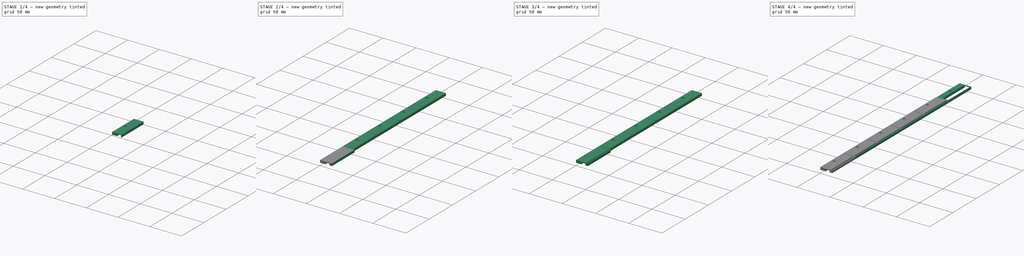
[diagram: build sequence overview — one tinted view per stage of 4, left to right]
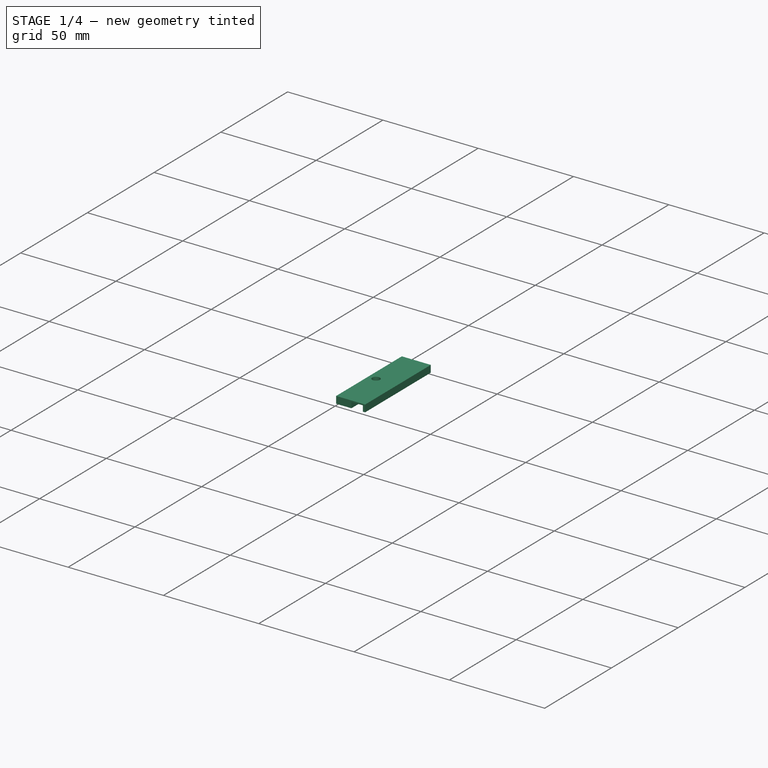
[diagram: stage 1 of 4 — iso view after this stage's code; geometry added in this stage tinted green]
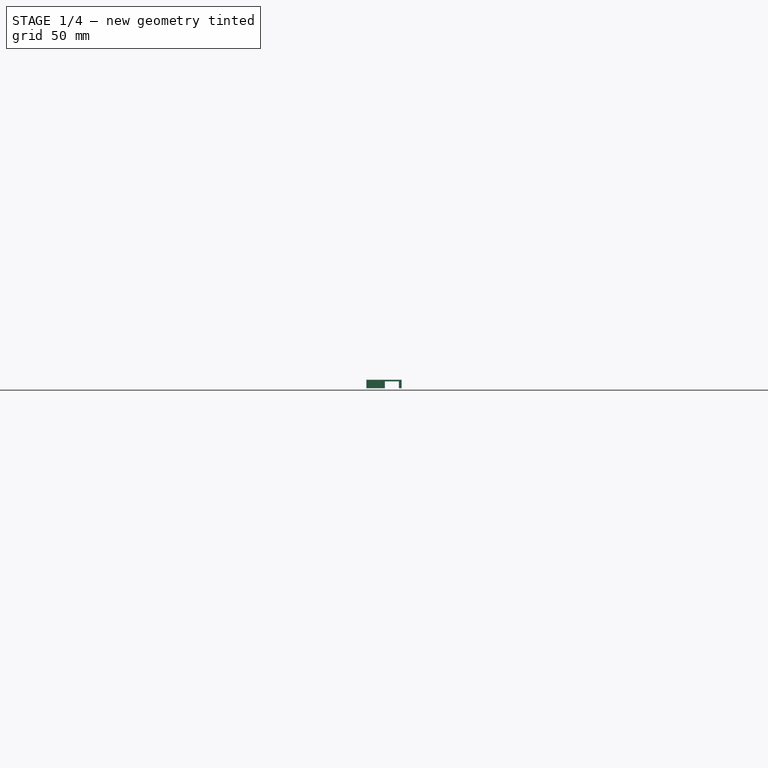
[diagram: stage 1 of 4 — front view after this stage's code; geometry added in this stage tinted green]
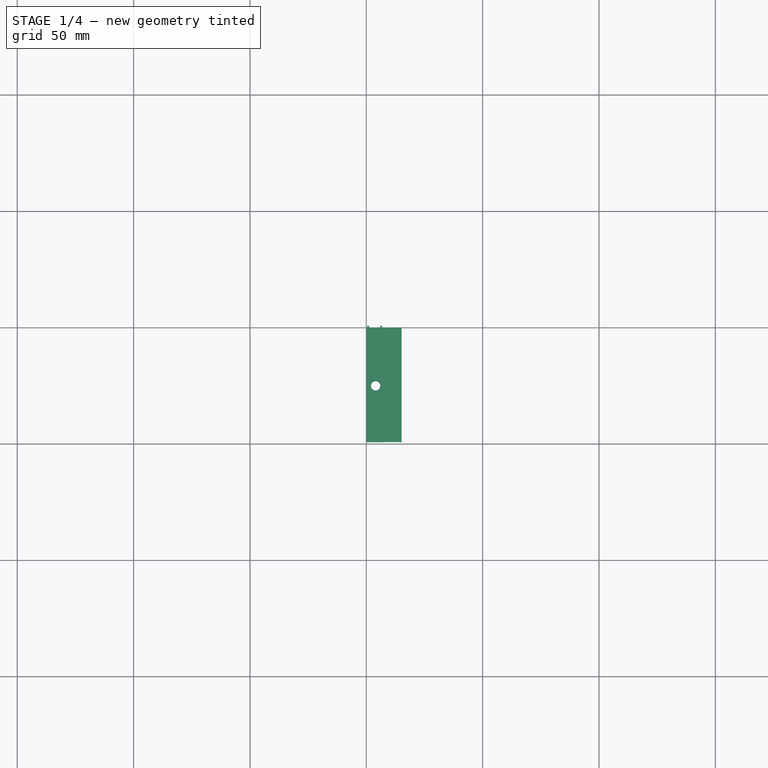
[diagram: stage 1 of 4 — top view after this stage's code; geometry added in this stage tinted green]
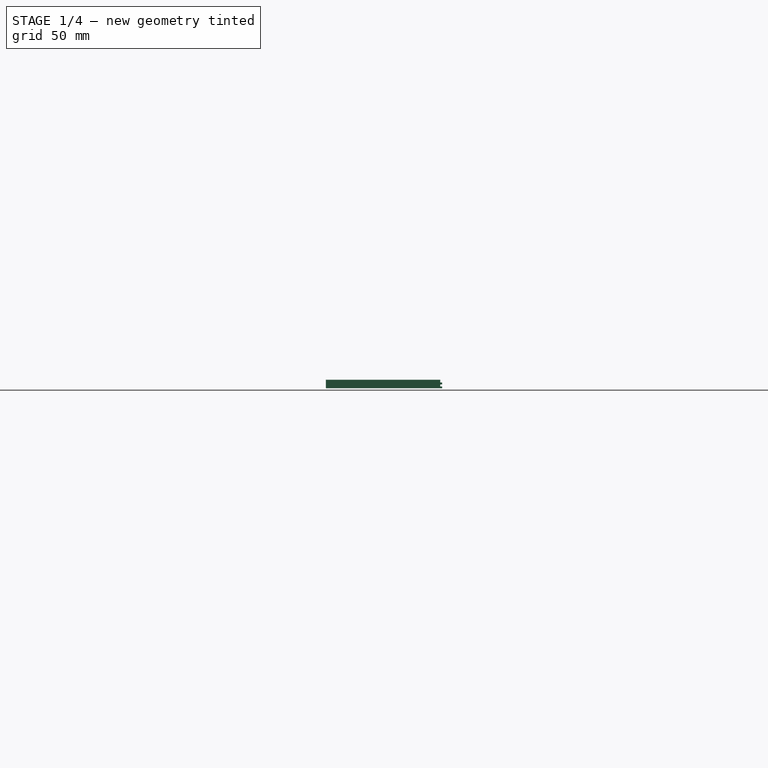
[diagram: stage 1 of 4 — right view after this stage's code; geometry added in this stage tinted green]
FCSTD DOCUMENT  (FreeCAD 0.22R36117 (Git))
Label: cob strip mount
License: All rights reserved
LicenseURL: http://en.wikipedia.org/wiki/All_rights_reserved
objects: Sketcher::SketchObject×7, PartDesign::Pad×4, PartDesign::Pocket×3, Spreadsheet::Sheet×2, PartDesign::Chamfer×2, PartDesign::Body×2, Part::FeaturePython×2
note: 29 computed .brp shape members not serialized (recipe doc carries the construction recipe); baked Part::Feature solids carry a one-line shape summary decoded from their .brp

FEATURE [Sketcher::SketchObject] Sketch006  label="wire strip"
  FullyConstrained = true
  MapMode = 5
  Placement = pos=(0,0,0) rot=(1,0,0;1.5708rad)
  Support = -> [XZ_Plane002]
  expr: Constraints[16] = <<q001>>.screw_diameter * 2
  expr: Constraints[17] = <<q>>.wire_width
  expr: Constraints[18] = <<q001>>.wire_thickness
  expr: Constraints[19] = <<q001>>.retainer_height
  expr: Constraints[22] = <<q>>.wall
  sketch-geometry (8):
    g0: LineSegment StartX=0 StartY=3.7 StartZ=0 EndX=15.2 EndY=3.7 EndZ=0
    g1: LineSegment StartX=0 StartY=3.7 StartZ=0 EndX=0 EndY=0 EndZ=0
    g2: LineSegment StartX=0 StartY=0 StartZ=0 EndX=8 EndY=0 EndZ=0
    g3: LineSegment StartX=8 StartY=0 StartZ=0 EndX=8 EndY=3 EndZ=0
    g4: LineSegment StartX=8 StartY=3 StartZ=0 EndX=14 EndY=3 EndZ=0
    g5: LineSegment StartX=14 StartY=3 StartZ=0 EndX=14 EndY=0 EndZ=0
    g6: LineSegment StartX=14 StartY=0 StartZ=0 EndX=15.2 EndY=0 EndZ=0
    g7: LineSegment StartX=15.2 StartY=0 StartZ=0 EndX=15.2 EndY=3.7 EndZ=0
  constraints (23):
    c: Horizontal(g0)
    c: Coincident(g0,g1)
    c: Vertical(g1)
    c: Coincident(g1,g2)
    c: Horizontal(g2)
    c: Coincident(g2,g3)
    c: Vertical(g3)
    c: Coincident(g3,g4)
    c: Horizontal(g4)
    c: Coincident(g4,g5)
    c: Vertical(g5)
    c: Coincident(g5,g6)
    c: Horizontal(g6)
    c: Coincident(g6,g7)
    c: Coincident(g7,g0)
    c: Vertical(g7)
    c: DistanceX(g2,g2) = 8
    c: DistanceX(g4,g4) = 6
    c: DistanceY(g5,g5) = 3
    c: DistanceY(g1,g1) = 3.7
    c: Horizontal(g5,g2)
    c: Coincident(g1,g-1)
    c: DistanceX(g5,g6) = 1.2
FEATURE [PartDesign::Pad] Pad003
  Direction = (0,-1,2e-16)
  Length = 49.2
  Length2 = 10
  Placement = pos=(0,0,0) rot=(1,0,0;1.5708rad)
  Profile = -> Sketch006
  ReferenceAxis = -> Sketch006 [N_Axis]
  Suppressed = false
  Type = 0
  expr: Length = <<q001>>.segment_length - <<q001>>.breakoff_size
FEATURE [Sketcher::SketchObject] Sketch007
  FullyConstrained = true
  MapMode = 5
  Placement = pos=(0,0,0) rot=(0,0.707107,0.707107;3.14159rad)
  Support = -> [XZ_Plane002]
  expr: Constraints[16] = <<q001>>.breakoff_size
  expr: Constraints[18] = <<q001>>.screw_diameter * 2 - <<q001>>.wall
  expr: Constraints[21] = <<q001>>.retainer_height - <<q001>>.wall
  expr: Constraints[22] = <<q001>>.breakoff_size
  expr: Constraints[23] = <<q001>>.wall
  sketch-geometry (16):
    g0: LineSegment StartX=-1.2 StartY=2.5 StartZ=0 EndX=-1.2 EndY=1.7 EndZ=0
    g1: LineSegment StartX=-1.2 StartY=1.7 StartZ=0 EndX=-0.4 EndY=1.7 EndZ=0
    g2: LineSegment StartX=-0.4 StartY=1.7 StartZ=0 EndX=-0.4 EndY=2.5 EndZ=0
    g3: LineSegment StartX=-0.4 StartY=2.5 StartZ=0 EndX=-1.2 EndY=2.5 EndZ=0
    g4: LineSegment StartX=-6.8 StartY=2.5 StartZ=0 EndX=-6.8 EndY=1.7 EndZ=0
    g5: LineSegment StartX=-6.8 StartY=1.7 StartZ=0 EndX=-6 EndY=1.7 EndZ=0
    g6: LineSegment StartX=-6 StartY=1.7 StartZ=0 EndX=-6 EndY=2.5 EndZ=0
    g7: LineSegment StartX=-6 StartY=2.5 StartZ=0 EndX=-6.8 EndY=2.5 EndZ=0
    g8: LineSegment StartX=-0.4 StartY=0 StartZ=0 EndX=-0.4 EndY=0.8 EndZ=0
    g9: LineSegment StartX=-0.4 StartY=0.8 StartZ=0 EndX=-1.2 EndY=0.8 EndZ=0
    g10: LineSegment StartX=-1.2 StartY=0.8 StartZ=0 EndX=-1.2 EndY=0 EndZ=0
    g11: LineSegment StartX=-1.2 StartY=0 StartZ=0 EndX=-0.4 EndY=0 EndZ=0
    g12: LineSegment StartX=-6 StartY=0 StartZ=0 EndX=-6 EndY=0.8 EndZ=0
    g13: LineSegment StartX=-6 StartY=0.8 StartZ=0 EndX=-6.8 EndY=0.8 EndZ=0
    g14: LineSegment StartX=-6.8 StartY=0.8 StartZ=0 EndX=-6.8 EndY=0 EndZ=0
    g15: LineSegment StartX=-6.8 StartY=0 StartZ=0 EndX=-6 EndY=0 EndZ=0
  constraints (48):
    c: Coincident(g0,g1)
    c: Coincident(g1,g2)
    c: Coincident(g2,g3)
    c: Coincident(g3,g0)
    c: Vertical(g0)
    c: Vertical(g2)
    c: Horizontal(g1)
    c: Horizontal(g3)
    c: Coincident(g4,g5)
    c: Coincident(g5,g6)
    c: Coincident(g6,g7)
    c: Coincident(g7,g4)
    c: Vertical(g4)
    c: Vertical(g6)
    c: Horizontal(g5)
    c: Horizontal(g7)
    c: DistanceX(g5,g5) = 0.8
    c: Equal(g5,g1)
    c: DistanceX(g4,g-1) = 6.8
    c: Horizontal(g5,g1)
    c: Horizontal(g2,g6)
    c: DistanceY(g-1,g0) = 2.5
    c: DistanceY(g0,g0) = 0.8
    c: DistanceX(g0,g-1) = 1.2
    c: Coincident(g8,g9)
    c: Coincident(g9,g10)
    c: Coincident(g10,g11)
    c: Coincident(g11,g8)
    c: Vertical(g8)
    c: Vertical(g10)
    c: Horizontal(g9)
    c: Horizontal(g11)
    c: Coincident(g12,g13)
    c: Coincident(g13,g14)
    c: Coincident(g14,g15)
    c: Coincident(g15,g12)
    c: Vertical(g12)
    c: Vertical(g14)
    c: Horizontal(g13)
    c: Horizontal(g15)
    c: Equal(g13,g12)
    c: Equal(g10,g9)
    c: Equal(g9,g1)
    c: Equal(g9,g12)
    c: Vertical(g9,g0)
    c: Horizontal(g10,g12)
    c: PointOnObject(g8,g-1)
    c: Vertical(g13,g4)
FEATURE [PartDesign::Pad] Pad004
  BaseFeature = -> Pad003
  Direction = (0,1,-2e-16)
  Length = 0.8
  Length2 = 10
  Placement = pos=(0,0,0) rot=(1,0,0;1.5708rad)
  Profile = -> Sketch007
  ReferenceAxis = -> Sketch007 [N_Axis]
  Suppressed = false
  Type = 0
  expr: Length = <<q001>>.breakoff_size
FEATURE [Sketcher::SketchObject] Sketch009
  FullyConstrained = true
  MapMode = 5
  Support = -> [XY_Plane002]
  expr: Constraints[0] = <<q001>>.screw_diameter
  expr: Constraints[1] = <<q001>>.screw_diameter
  expr: Constraints[2] = <<q001>>.segment_length / 2
  sketch-geometry (1):
    g0: Circle CenterX=4 CenterY=-25 CenterZ=0 NormalX=0 NormalY=0 NormalZ=1 AngleXU=0 Radius=2
  constraints (3):
    c: Diameter(g0) = 4
    c: DistanceX(g-1,g0) = 4
    c: DistanceY(g0,g-1) = 25
FEATURE [PartDesign::Pocket] Pocket004
  BaseFeature = -> Pad004
  Direction = (0,0,-1)
  Length = 5
  Length2 = 5
  Placement = pos=(0,0,0) rot=(1,0,0;1.5708rad)
  Profile = -> Sketch009
  ReferenceAxis = -> Sketch009 [N_Axis]
  Refine = true
  Reversed = true
  Suppressed = false
  Type = 0
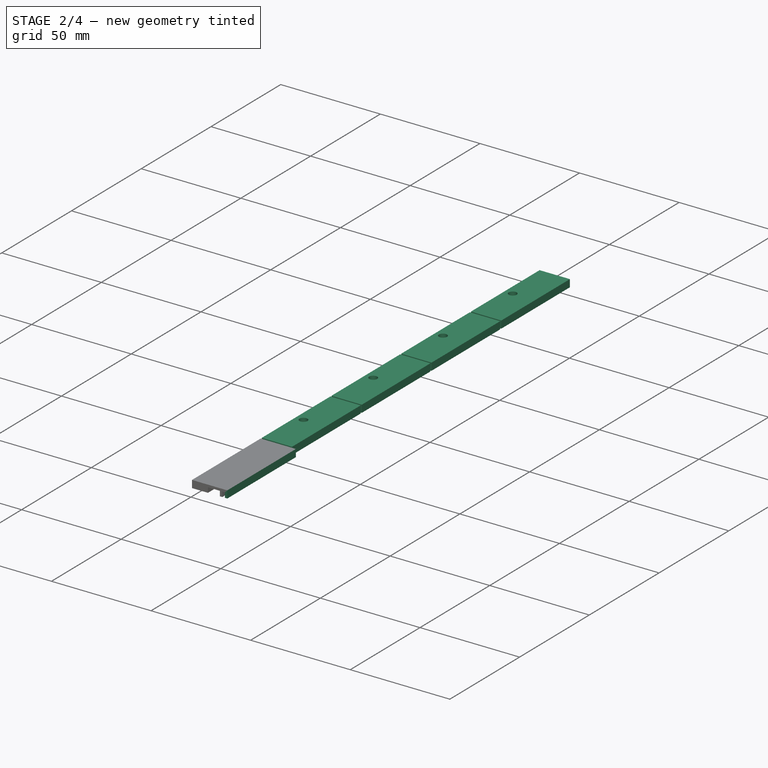
[diagram: stage 2 of 4 — iso view after this stage's code; geometry added in this stage tinted green]
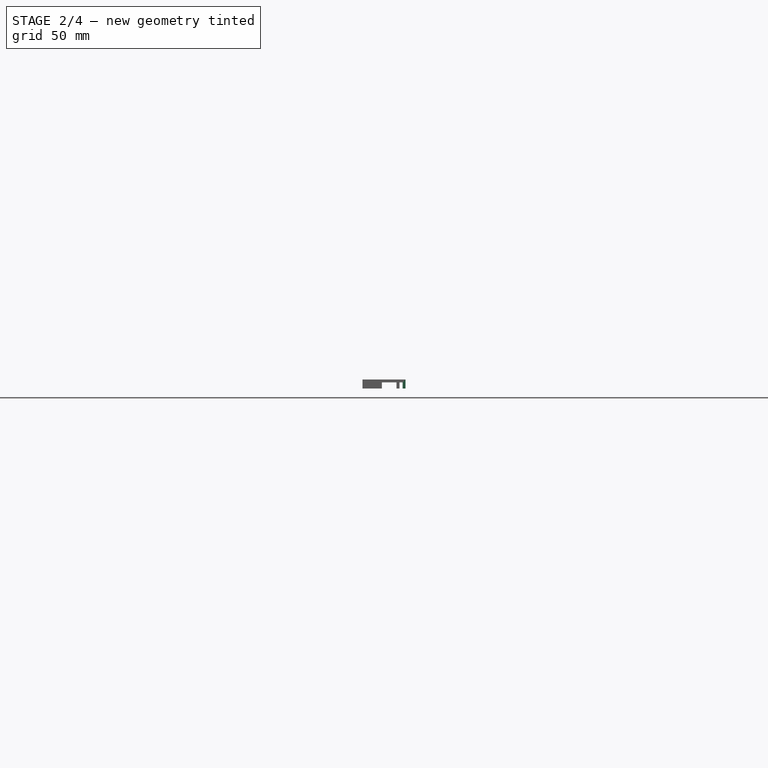
[diagram: stage 2 of 4 — front view after this stage's code; geometry added in this stage tinted green]
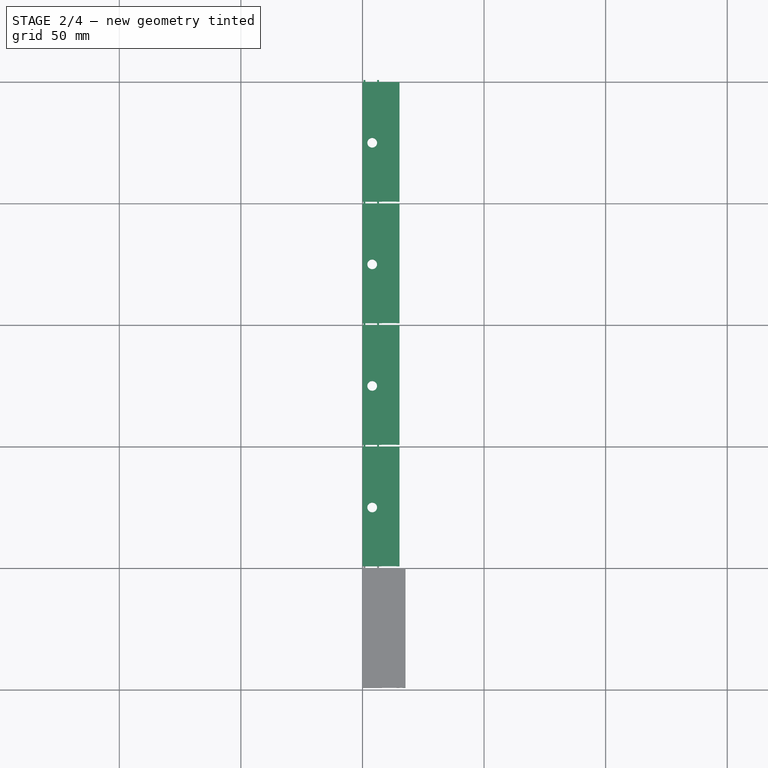
[diagram: stage 2 of 4 — top view after this stage's code; geometry added in this stage tinted green]
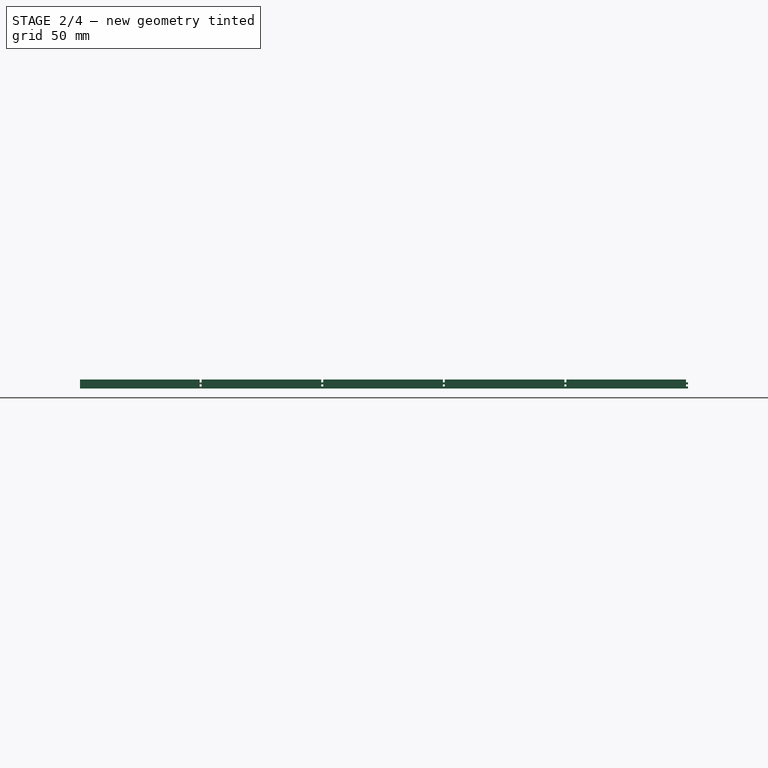
[diagram: stage 2 of 4 — right view after this stage's code; geometry added in this stage tinted green]
FEATURE [Spreadsheet::Sheet] Spreadsheet  label="q"
  cells = A2='screw diameter; B2(screw_diameter)=4; A4='strip width; B4(strip_width)=8.5; A5='strip thickness; B5(strip_thickness)=2.5; A7='wall; B7(wall)=1.2; A9='segment length; B9(segment_length)=50; A10='breakoff size; B10(breakoff_size)=0.8; A11='retainer height; B11(retainer_height)==strip_thickness + wall; A12='retainer width; B12(retainer_width)==screw_diameter * 2 + strip_width + wall; A14='wire width; B14(wire_width)=6; A15='wire thickness; B15(wire_thickness)=3
FEATURE [Sketcher::SketchObject] Sketch  label="retainer profile"
  FullyConstrained = true
  MapMode = 5
  Placement = pos=(0,0,0) rot=(1,0,0;1.5708rad)
  Support = -> [XZ_Plane]
  expr: Constraints[17] = <<q>>.screw_diameter * 2
  expr: Constraints[18] = <<q>>.strip_width
  expr: Constraints[19] = <<q>>.strip_thickness
  expr: Constraints[1] = <<q>>.retainer_width
  expr: Constraints[20] = <<q>>.retainer_height
  sketch-geometry (8):
    g0: LineSegment StartX=0 StartY=3.7 StartZ=0 EndX=17.7 EndY=3.7 EndZ=0
    g1: LineSegment StartX=0 StartY=3.7 StartZ=0 EndX=0 EndY=0 EndZ=0
    g2: LineSegment StartX=0 StartY=0 StartZ=0 EndX=8 EndY=0 EndZ=0
    g3: LineSegment StartX=8 StartY=0 StartZ=0 EndX=8 EndY=2.5 EndZ=0
    g4: LineSegment StartX=8 StartY=2.5 StartZ=0 EndX=16.5 EndY=2.5 EndZ=0
    g5: LineSegment StartX=16.5 StartY=2.5 StartZ=0 EndX=16.5 EndY=0 EndZ=0
    g6: LineSegment StartX=16.5 StartY=0 StartZ=0 EndX=17.7 EndY=0 EndZ=0
    g7: LineSegment StartX=17.7 StartY=0 StartZ=0 EndX=17.7 EndY=3.7 EndZ=0
  constraints (23):
    c: Horizontal(g0)
    c: DistanceX(g0,g0) = 17.7
    c: Coincident(g0,g1)
    c: Vertical(g1)
    c: Coincident(g1,g2)
    c: Horizontal(g2)
    c: Coincident(g2,g3)
    c: Vertical(g3)
    c: Coincident(g3,g4)
    c: Horizontal(g4)
    c: Coincident(g4,g5)
    c: Vertical(g5)
    c: Coincident(g5,g6)
    c: Horizontal(g6)
    c: Coincident(g6,g7)
    c: Coincident(g7,g0)
    c: Vertical(g7)
    c: DistanceX(g2,g2) = 8
    c: DistanceX(g4,g4) = 8.5
    c: DistanceY(g5,g5) = 2.5
    c: DistanceY(g1,g1) = 3.7
    c: Horizontal(g5,g2)
    c: Coincident(g1,g-1)
FEATURE [Sketcher::SketchObject] Sketch001
  FullyConstrained = true
  MapMode = 5
  Placement = pos=(0,0,0) rot=(0,0.707107,0.707107;3.14159rad)
  Support = -> [XZ_Plane]
  expr: Constraints[16] = <<q>>.breakoff_size
  expr: Constraints[18] = <<q>>.screw_diameter * 2 - <<q>>.wall
  expr: Constraints[21] = <<q>>.retainer_height - <<q>>.wall
  expr: Constraints[22] = <<q>>.breakoff_size
  expr: Constraints[23] = <<q>>.wall
  sketch-geometry (16):
    g0: LineSegment StartX=-1.2 StartY=2.5 StartZ=0 EndX=-1.2 EndY=1.7 EndZ=0
    g1: LineSegment StartX=-1.2 StartY=1.7 StartZ=0 EndX=-0.4 EndY=1.7 EndZ=0
    g2: LineSegment StartX=-0.4 StartY=1.7 StartZ=0 EndX=-0.4 EndY=2.5 EndZ=0
    g3: LineSegment StartX=-0.4 StartY=2.5 StartZ=0 EndX=-1.2 EndY=2.5 EndZ=0
    g4: LineSegment StartX=-6.8 StartY=2.5 StartZ=0 EndX=-6.8 EndY=1.7 EndZ=0
    g5: LineSegment StartX=-6.8 StartY=1.7 StartZ=0 EndX=-6 EndY=1.7 EndZ=0
    g6: LineSegment StartX=-6 StartY=1.7 StartZ=0 EndX=-6 EndY=2.5 EndZ=0
    g7: LineSegment StartX=-6 StartY=2.5 StartZ=0 EndX=-6.8 EndY=2.5 EndZ=0
    g8: LineSegment StartX=-0.4 StartY=0 StartZ=0 EndX=-0.4 EndY=0.8 EndZ=0
    g9: LineSegment StartX=-0.4 StartY=0.8 StartZ=0 EndX=-1.2 EndY=0.8 EndZ=0
    g10: LineSegment StartX=-1.2 StartY=0.8 StartZ=0 EndX=-1.2 EndY=0 EndZ=0
    g11: LineSegment StartX=-1.2 StartY=0 StartZ=0 EndX=-0.4 EndY=0 EndZ=0
    g12: LineSegment StartX=-6 StartY=0 StartZ=0 EndX=-6 EndY=0.8 EndZ=0
    g13: LineSegment StartX=-6 StartY=0.8 StartZ=0 EndX=-6.8 EndY=0.8 EndZ=0
    g14: LineSegment StartX=-6.8 StartY=0.8 StartZ=0 EndX=-6.8 EndY=0 EndZ=0
    g15: LineSegment StartX=-6.8 StartY=0 StartZ=0 EndX=-6 EndY=0 EndZ=0
  constraints (48):
    c: Coincident(g0,g1)
    c: Coincident(g1,g2)
    c: Coincident(g2,g3)
    c: Coincident(g3,g0)
    c: Vertical(g0)
    c: Vertical(g2)
    c: Horizontal(g1)
    c: Horizontal(g3)
    c: Coincident(g4,g5)
    c: Coincident(g5,g6)
    c: Coincident(g6,g7)
    c: Coincident(g7,g4)
    c: Vertical(g4)
    c: Vertical(g6)
    c: Horizontal(g5)
    c: Horizontal(g7)
    c: DistanceX(g5,g5) = 0.8
    c: Equal(g5,g1)
    c: DistanceX(g4,g-1) = 6.8
    c: Horizontal(g5,g1)
    c: Horizontal(g2,g6)
    c: DistanceY(g-1,g0) = 2.5
    c: DistanceY(g0,g0) = 0.8
    c: DistanceX(g0,g-1) = 1.2
    c: Coincident(g8,g9)
    c: Coincident(g9,g10)
    c: Coincident(g10,g11)
    c: Coincident(g11,g8)
    c: Vertical(g8)
    c: Vertical(g10)
    c: Horizontal(g9)
    c: Horizontal(g11)
    c: Coincident(g12,g13)
    c: Coincident(g13,g14)
    c: Coincident(g14,g15)
    c: Coincident(g15,g12)
    c: Vertical(g12)
    c: Vertical(g14)
    c: Horizontal(g13)
    c: Horizontal(g15)
    c: Equal(g13,g12)
    c: Equal(g10,g9)
    c: Equal(g9,g1)
    c: Equal(g9,g12)
    c: Vertical(g9,g0)
    c: Horizontal(g10,g12)
    c: PointOnObject(g8,g-1)
    c: Vertical(g13,g4)
FEATURE [Sketcher::SketchObject] Sketch002
  FullyConstrained = true
  MapMode = 5
  Support = -> [XY_Plane]
  expr: Constraints[10] = <<q>>.wall
  expr: Constraints[11] = <<q>>.screw_diameter * 2
  expr: Constraints[8] = <<q>>.strip_width
  expr: Constraints[9] = <<q>>.segment_length - <<q>>.wall * 2 - <<q>>.breakoff_size
  sketch-geometry (4):
    g0: LineSegment StartX=8 StartY=-1.2 StartZ=0 EndX=8 EndY=-48 EndZ=0
    g1: LineSegment StartX=8 StartY=-48 StartZ=0 EndX=16.5 EndY=-48 EndZ=0
    g2: LineSegment StartX=16.5 StartY=-48 StartZ=0 EndX=16.5 EndY=-1.2 EndZ=0
    g3: LineSegment StartX=16.5 StartY=-1.2 StartZ=0 EndX=8 EndY=-1.2 EndZ=0
  constraints (12):
    c: Coincident(g0,g1)
    c: Coincident(g1,g2)
    c: Coincident(g2,g3)
    c: Coincident(g3,g0)
    c: Vertical(g0)
    c: Vertical(g2)
    c: Horizontal(g1)
    c: Horizontal(g3)
    c: DistanceX(g3,g3) = 8.5
    c: DistanceY(g2,g2) = 46.8
    c: DistanceY(g0,g-1) = 1.2
    c: DistanceX(g-1,g0) = 8
FEATURE [PartDesign::Pad] Pad
  Direction = (0,-1,2e-16)
  Length = 49.2
  Length2 = 10
  Placement = pos=(0,0,0) rot=(1,0,0;1.5708rad)
  Profile = -> Sketch
  ReferenceAxis = -> Sketch [N_Axis]
  Suppressed = false
  Type = 0
  expr: Length = <<q>>.segment_length - <<q>>.breakoff_size
FEATURE [PartDesign::Chamfer] Chamfer002
  Angle = 45
  Base = -> Pocket004 [Face1]
  BaseFeature = -> Pocket004
  ChamferType = 0
  FlipDirection = false
  Placement = pos=(0,0,0) rot=(1,0,0;1.5708rad)
  Size = 0.5
  Size2 = 1
  SupportTransform = false
  Suppressed = false
  UseAllEdges = false
FEATURE [PartDesign::Body] Body002  label="50mm snappable wire strip"
  Group = -> [Sketch006,Pad003,Sketch007,Pad004,Sketch009,Pocket004,Chamfer002]
  Origin = -> Origin002
  Tip = -> Pocket004
FEATURE [Spreadsheet::Sheet] Spreadsheet001  label="q001"
  cells = A2='screw diameter; B2(screw_diameter)=4; A4='strip width; B4(strip_width)=8.5; A5='strip thickness; B5(strip_thickness)=2.5; A7='wall; B7(wall)=1.2; A9='segment length; B9(segment_length)=50; A10='breakoff size; B10(breakoff_size)=0.8; A11='retainer height; B11(retainer_height)==strip_thickness + wall; A12='retainer width; B12(retainer_width)==screw_diameter * 2 + strip_width + wall; A14='wire width; B14(wire_width)=6; A15='wire thickness; B15(wire_thickness)=3
FEATURE [Part::FeaturePython] Array001  label="array of snappable wire strips"  # Draft array (typed FeaturePython)
  AlwaysSyncPlacement = false
  Angle = 360
  ArrayType = 0
  Axis = (0,0,1)
  Base = -> Body002
  Center = (0,0,0)
  Count = 5
  ExpandArray = false
  Fuse = true
  IntervalAxis = (0,0,0)
  IntervalX = (100,0,0)
  IntervalY = (0,50,0)
  IntervalZ = (0,0,100)
  NumberCircles = 3
  NumberPolar = 5
  NumberX = 1
  NumberY = 5
  NumberZ = 1
  PlacementList = 5 placements: arithmetic series from (0,0,0) step (0,50,0) to (0,200,0)
  RadialDistance = 50
  ScaleList = (5) [(1,1,1),(1,1,1),(1,1,1),(1,1,1),(1,1,1)]
  Symmetry = 1
  TangentialDistance = 25
  expr: .IntervalY.y = <<q>>.segment_length
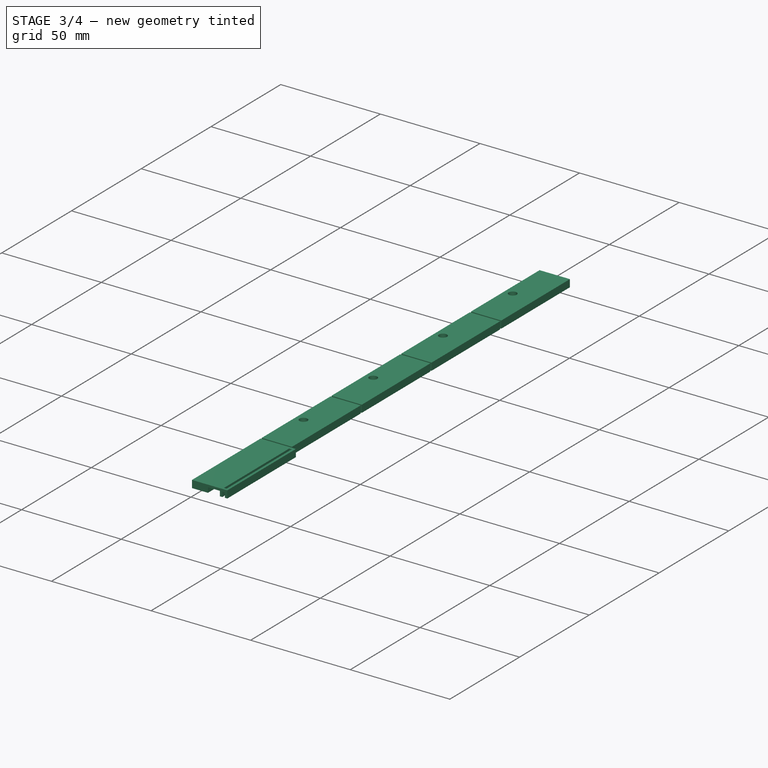
[diagram: stage 3 of 4 — iso view after this stage's code; geometry added in this stage tinted green]
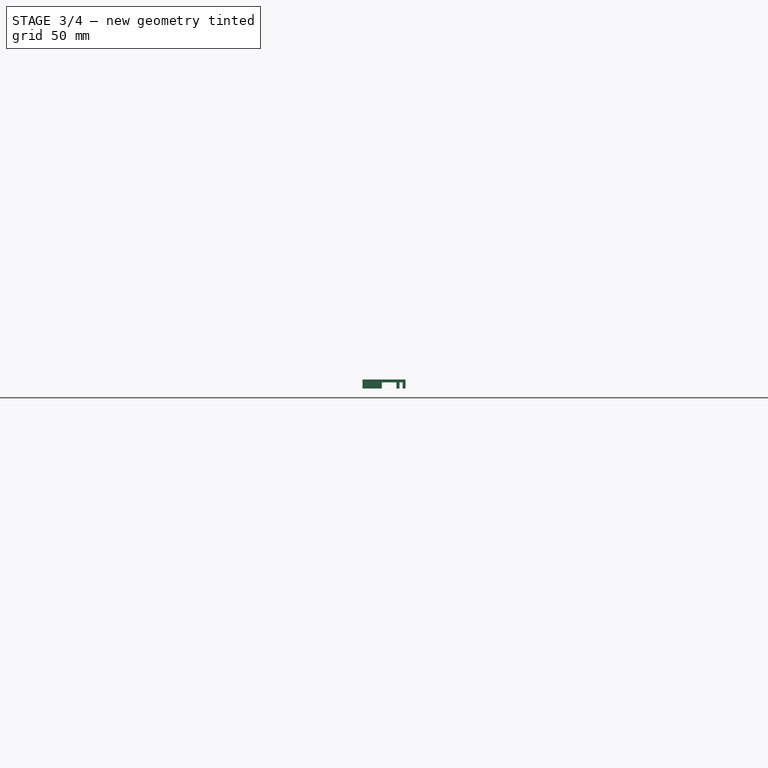
[diagram: stage 3 of 4 — front view after this stage's code; geometry added in this stage tinted green]
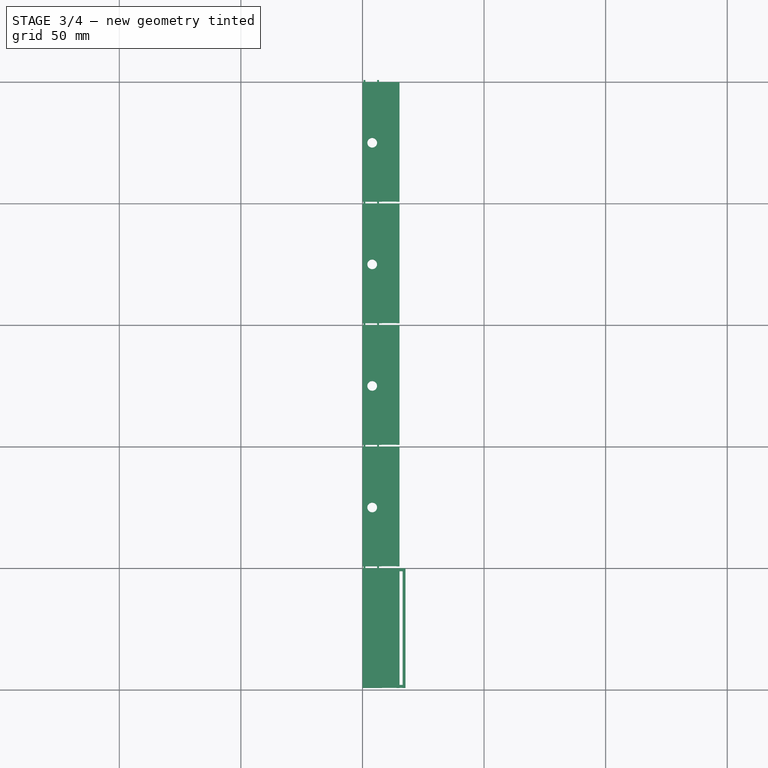
[diagram: stage 3 of 4 — top view after this stage's code; geometry added in this stage tinted green]
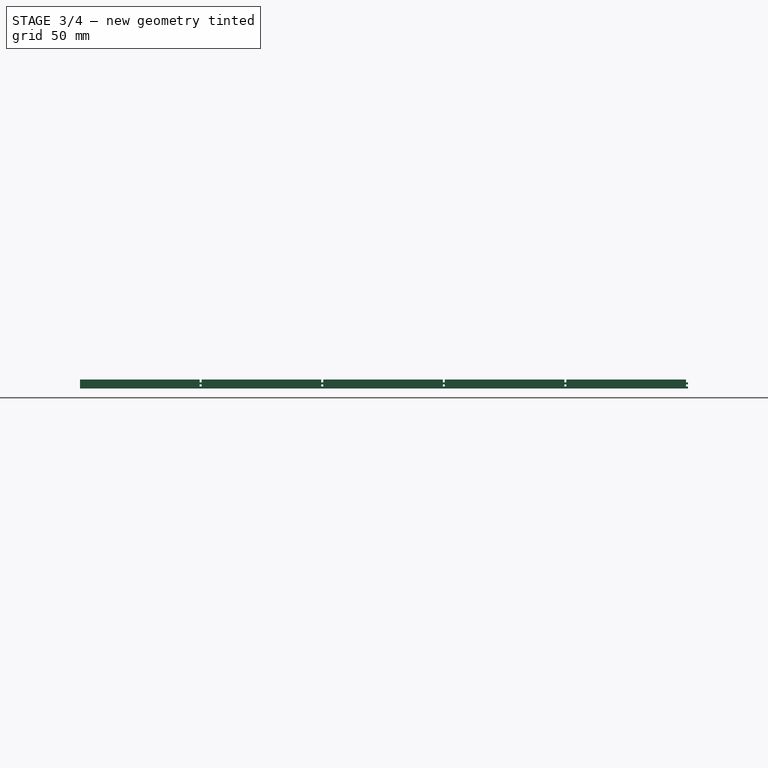
[diagram: stage 3 of 4 — right view after this stage's code; geometry added in this stage tinted green]
FEATURE [PartDesign::Pad] Pad001
  BaseFeature = -> Pad
  Direction = (0,1,-2e-16)
  Length = 0.8
  Length2 = 10
  Placement = pos=(0,0,0) rot=(1,0,0;1.5708rad)
  Profile = -> Sketch001
  ReferenceAxis = -> Sketch001 [N_Axis]
  Suppressed = false
  Type = 0
  expr: Length = <<q>>.breakoff_size
FEATURE [PartDesign::Pocket] Pocket
  BaseFeature = -> Pad001
  Direction = (0,0,-1)
  Length = 5
  Length2 = 5
  Placement = pos=(0,0,0) rot=(1,0,0;1.5708rad)
  Profile = -> Sketch002
  ReferenceAxis = -> Sketch002 [N_Axis]
  Reversed = true
  Suppressed = false
  Type = 0
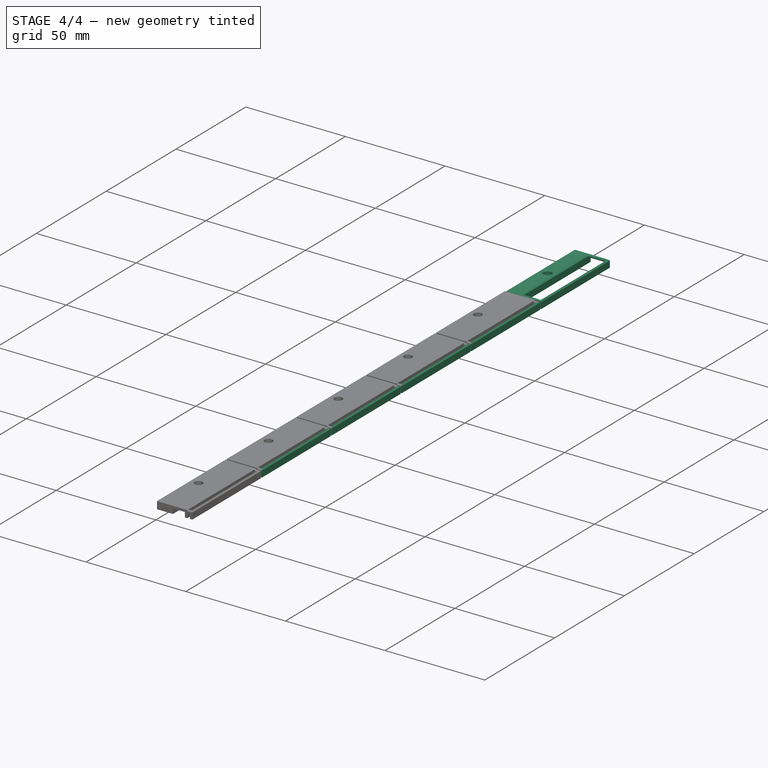
[diagram: stage 4 of 4 — iso view after this stage's code; geometry added in this stage tinted green]
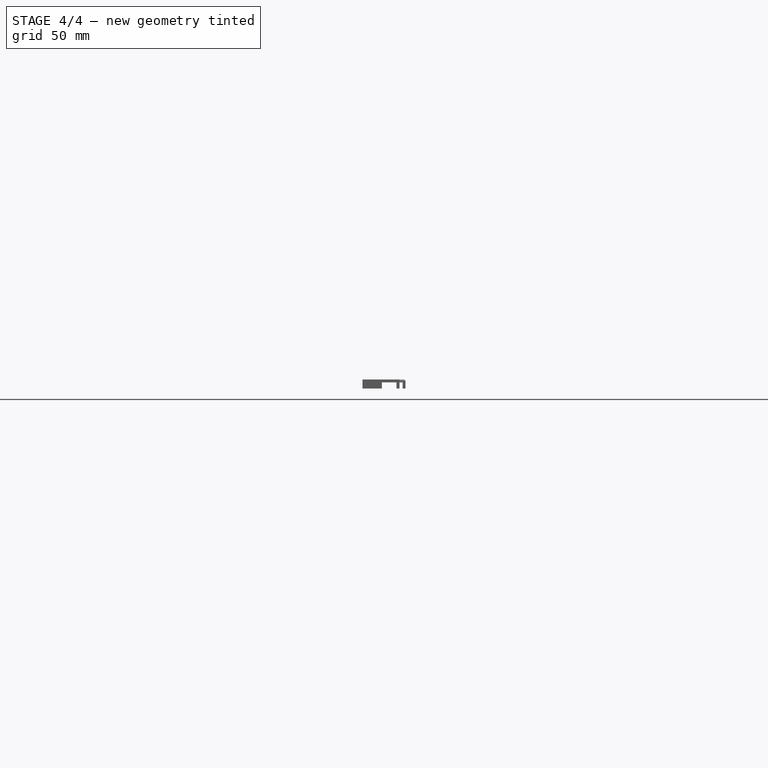
[diagram: stage 4 of 4 — front view after this stage's code; geometry added in this stage tinted green]
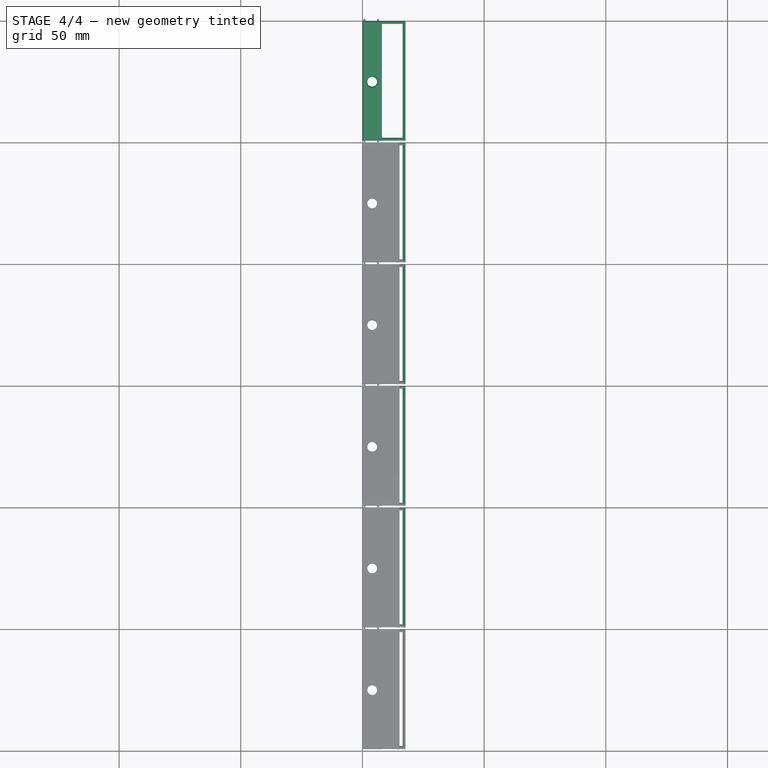
[diagram: stage 4 of 4 — top view after this stage's code; geometry added in this stage tinted green]
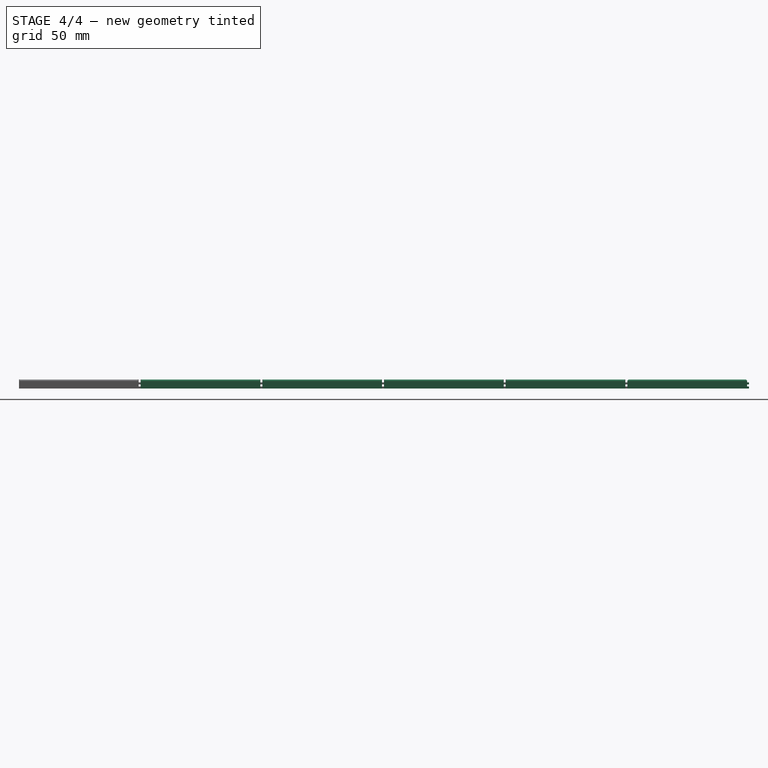
[diagram: stage 4 of 4 — right view after this stage's code; geometry added in this stage tinted green]
FEATURE [Sketcher::SketchObject] Sketch003
  FullyConstrained = true
  MapMode = 5
  Support = -> [XY_Plane]
  expr: Constraints[0] = <<q>>.screw_diameter
  expr: Constraints[1] = <<q>>.screw_diameter
  expr: Constraints[2] = <<q>>.segment_length / 2
  sketch-geometry (1):
    g0: Circle CenterX=4 CenterY=-25 CenterZ=0 NormalX=0 NormalY=0 NormalZ=1 AngleXU=0 Radius=2
  constraints (3):
    c: Diameter(g0) = 4
    c: DistanceX(g-1,g0) = 4
    c: DistanceY(g0,g-1) = 25
FEATURE [PartDesign::Pocket] Pocket001
  BaseFeature = -> Pocket
  Direction = (0,0,-1)
  Length = 5
  Length2 = 5
  Placement = pos=(0,0,0) rot=(1,0,0;1.5708rad)
  Profile = -> Sketch003
  ReferenceAxis = -> Sketch003 [N_Axis]
  Refine = true
  Reversed = true
  Suppressed = false
  Type = 0
FEATURE [PartDesign::Chamfer] Chamfer
  Angle = 45
  Base = -> Pocket001 [Face1]
  BaseFeature = -> Pocket001
  ChamferType = 0
  FlipDirection = false
  Placement = pos=(0,0,0) rot=(1,0,0;1.5708rad)
  Size = 0.5
  Size2 = 1
  SupportTransform = false
  Suppressed = false
  UseAllEdges = false
FEATURE [PartDesign::Body] Body  label="50mm snappable cob strip"
  Group = -> [Sketch,Pad,Sketch001,Pad001,Sketch002,Pocket,Sketch003,Pocket001,Chamfer]
  Origin = -> Origin
  Tip = -> Chamfer
FEATURE [Part::FeaturePython] Array  label="array of snappable cob strips"  # Draft array (typed FeaturePython)
  AlwaysSyncPlacement = false
  Angle = 360
  ArrayType = 0
  Axis = (0,0,1)
  Base = -> Body
  Center = (0,0,0)
  Count = 6
  ExpandArray = false
  Fuse = true
  IntervalAxis = (0,0,0)
  IntervalX = (100,0,0)
  IntervalY = (0,50,0)
  IntervalZ = (0,0,100)
  NumberCircles = 3
  NumberPolar = 5
  NumberX = 1
  NumberY = 6
  NumberZ = 1
  PlacementList = 6 placements: arithmetic series from (0,0,0) step (0,50,0) to (0,250,0)
  RadialDistance = 50
  ScaleList = (6) [(1,1,1),(1,1,1),(1,1,1),(1,1,1),(1,1,1),(1,1,1)]
  Symmetry = 1
  TangentialDistance = 25
  expr: .IntervalY.y = <<q>>.segment_length
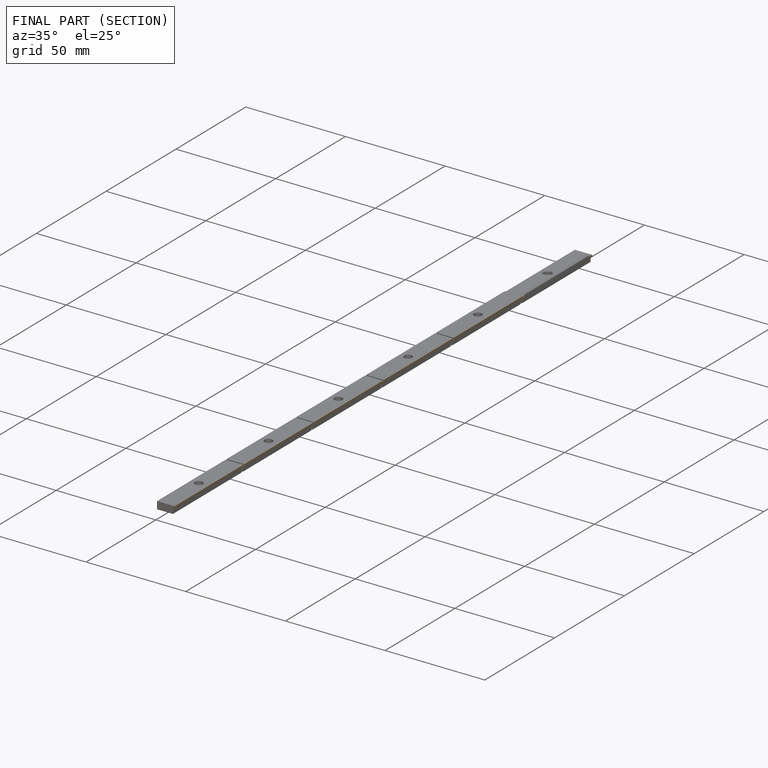
[diagram: finished part — half-section view (interior)]
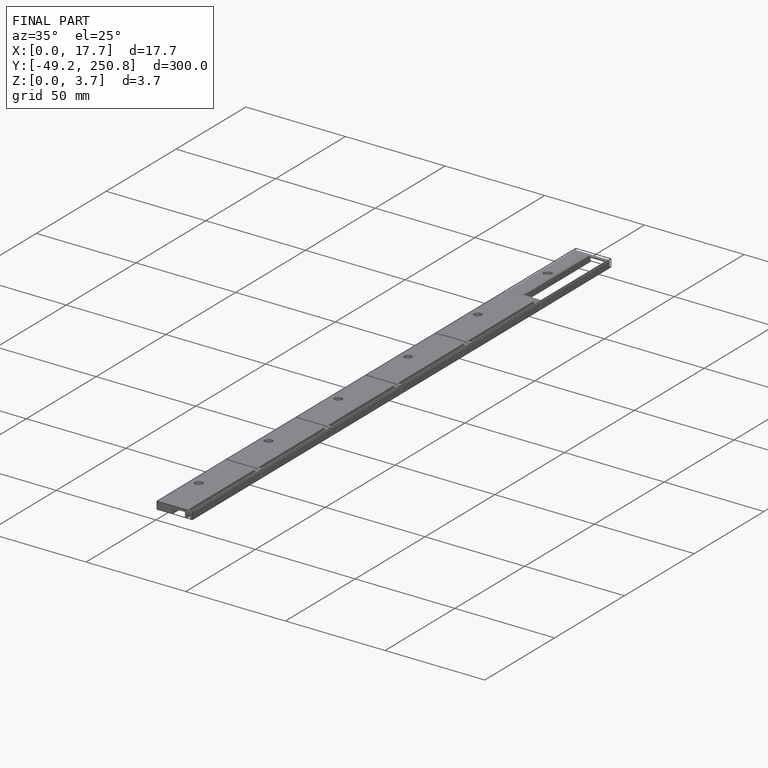
[diagram: finished part — iso view with bounding-box wireframe]
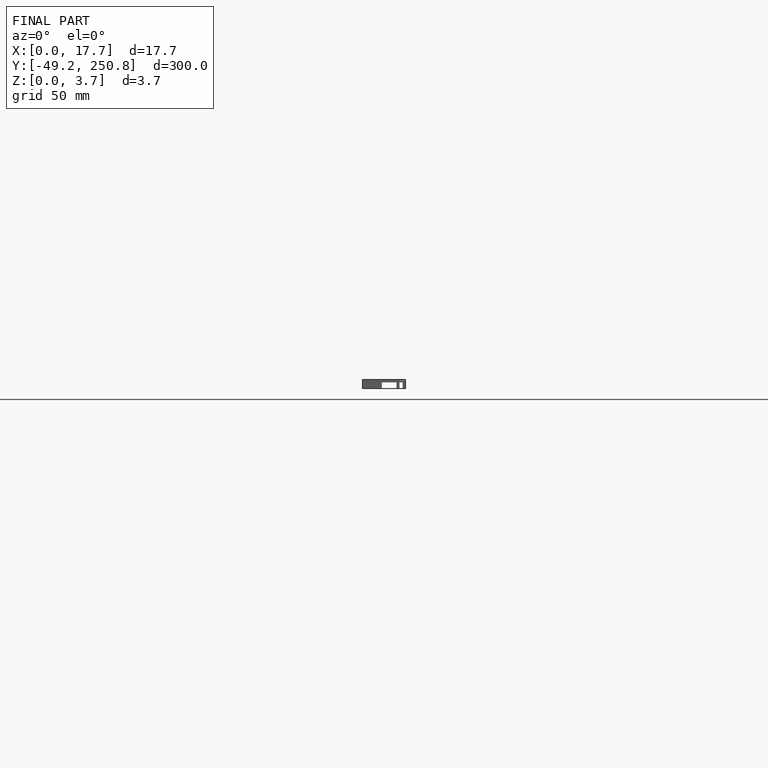
[diagram: finished part — front view with bounding-box wireframe]
